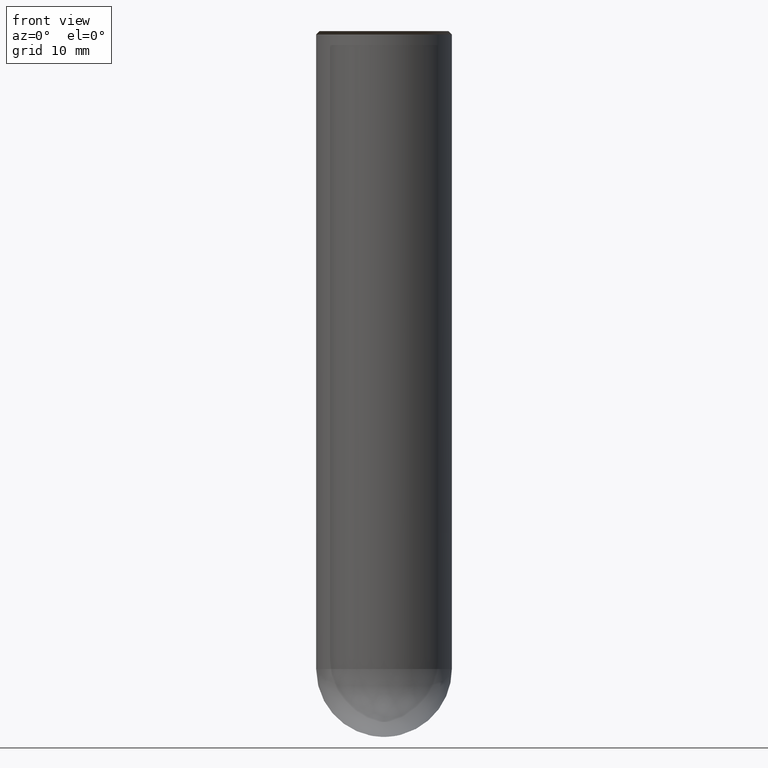
[diagram: clean part render]
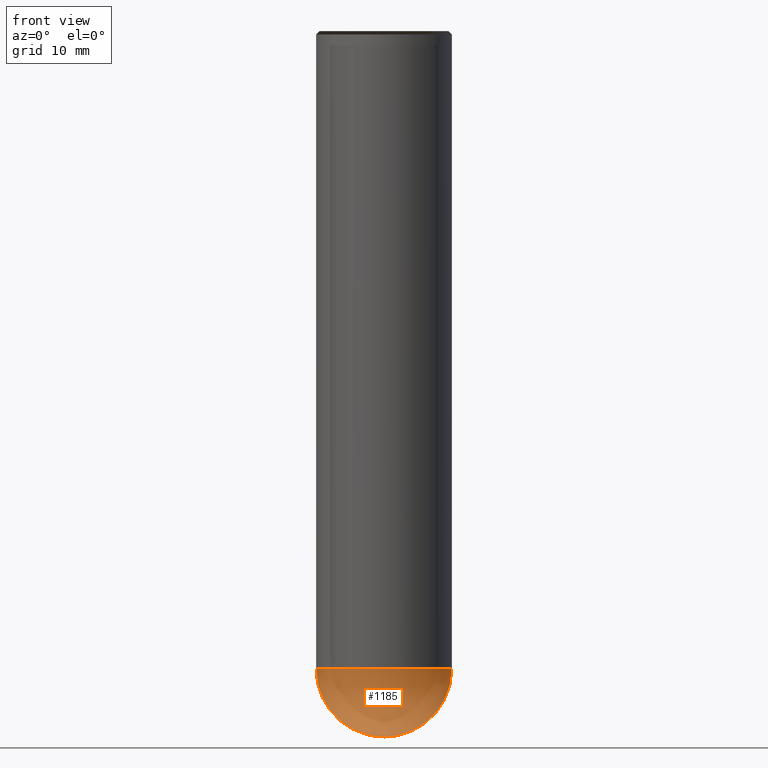
[diagram: same view with one face highlighted and labeled with its STEP entity id]
A machine part, front view. The second image highlights one B-rep face of the part: STEP entity #1185.
In plain terms, the highlighted face is a freeform B-spline surface patch.
Its self-contained STEP definition (entity closure, byte-faithful):
#1060=CARTESIAN_POINT('',(0.0,0.0,-35.0));
#1061=CARTESIAN_POINT('',(10.0,0.0,-35.0));
#1065=CARTESIAN_POINT('',(-10.0,0.0,-35.0));
#1066=CARTESIAN_POINT('',(10.0,0.0,-25.0));
#1070=CARTESIAN_POINT('',(-10.0,0.0,-25.0));
#1077=CARTESIAN_POINT('',(-10.0,-10.0,-35.0));
#1078=CARTESIAN_POINT('',(0.0,-10.0,-35.0));
#1079=CARTESIAN_POINT('',(10.0,-10.0,-35.0));
#1080=CARTESIAN_POINT('',(-10.0,-10.0,-25.0));
#1081=CARTESIAN_POINT('',(0.0,-10.0,-25.0));
#1082=CARTESIAN_POINT('',(10.0,-10.0,-25.0));
#1170=(
BOUNDED_SURFACE()
B_SPLINE_SURFACE(2,2,(
(#1060,#1060,#1060,#1060,#1060),
(#1065,#1077,#1078,#1079,#1061),
(#1070,#1080,#1081,#1082,#1066)
), .UNSPECIFIED.,.F.,.F.,.F.)
B_SPLINE_SURFACE_WITH_KNOTS((3,3),(3,2,3),(
0.0,1.0),(
0.0,0.5,1.0), .UNSPECIFIED.)
GEOMETRIC_REPRESENTATION_ITEM()
RATIONAL_B_SPLINE_SURFACE(((1.0,0.707106781187,1.0,0.707106781187,1.0),
(0.707106781187,0.5,0.707106781187,0.5,0.707106781187),
(1.0,0.707106781187,1.0,0.707106781187,1.0)
))
REPRESENTATION_ITEM('')
SURFACE()
);
#1171=(
BOUNDED_CURVE()
B_SPLINE_CURVE(2,(#1066,#1061,#1060),.UNSPECIFIED.,.F.,.F.)
B_SPLINE_CURVE_WITH_KNOTS((3,3),
(0.0,1.0),.UNSPECIFIED.)
CURVE()
GEOMETRIC_REPRESENTATION_ITEM()
RATIONAL_B_SPLINE_CURVE((1.0,0.707106781187,1.0))
REPRESENTATION_ITEM('')
);
#1172=(
BOUNDED_CURVE()
B_SPLINE_CURVE(2,(#1060,#1065,#1070),.UNSPECIFIED.,.F.,.F.)
B_SPLINE_CURVE_WITH_KNOTS((3,3),
(0.0,1.0),.UNSPECIFIED.)
CURVE()
GEOMETRIC_REPRESENTATION_ITEM()
RATIONAL_B_SPLINE_CURVE((1.0,0.707106781187,1.0))
REPRESENTATION_ITEM('')
);
#1173=(
BOUNDED_CURVE()
B_SPLINE_CURVE(2,(#1070,#1080,#1081,#1082,#1066),.UNSPECIFIED.,.F.,.F.)
B_SPLINE_CURVE_WITH_KNOTS((3,2,3),
(0.0,0.5,1.0),.UNSPECIFIED.)
CURVE()
GEOMETRIC_REPRESENTATION_ITEM()
RATIONAL_B_SPLINE_CURVE((1.0,0.707106781187,1.0,0.707106781187,1.0))
REPRESENTATION_ITEM('')
);
#1174=VERTEX_POINT('',#1060);
#1175=VERTEX_POINT('',#1066);
#1176=VERTEX_POINT('',#1070);
#1177=EDGE_CURVE('',#1175,#1174,#1171,.T.);
#1178=EDGE_CURVE('',#1174,#1176,#1172,.T.);
#1179=EDGE_CURVE('',#1176,#1175,#1173,.T.);
#1180=ORIENTED_EDGE('',*,*,#1177,.T.);
#1181=ORIENTED_EDGE('',*,*,#1178,.T.);
#1182=ORIENTED_EDGE('',*,*,#1179,.T.);
#1183=EDGE_LOOP('',(#1180,#1181,#1182));
#1184=FACE_OUTER_BOUND('',#1183,.T.);
#1185=ADVANCED_FACE('',(#1184),#1170,.T.);